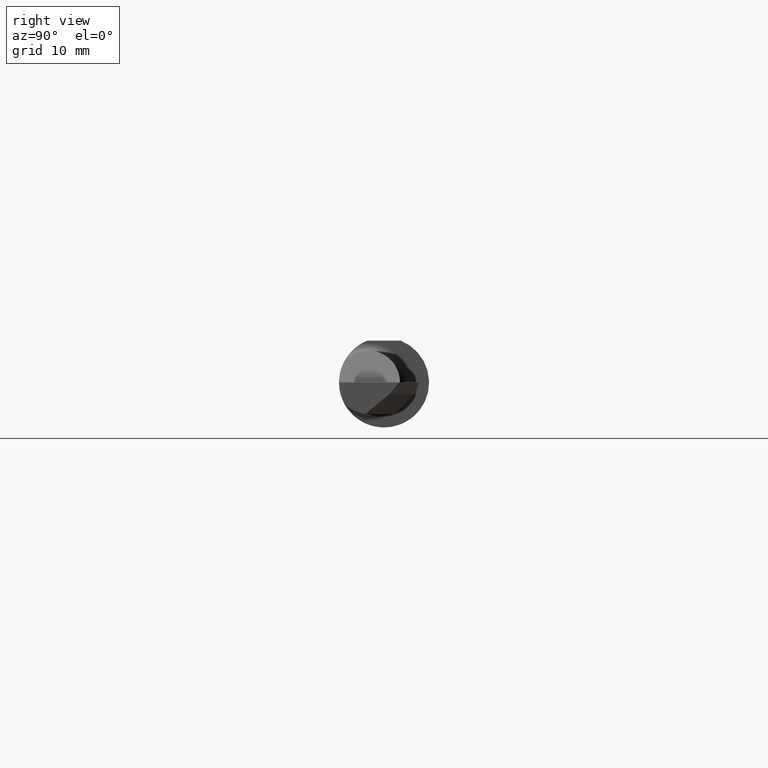
[diagram: clean part render]
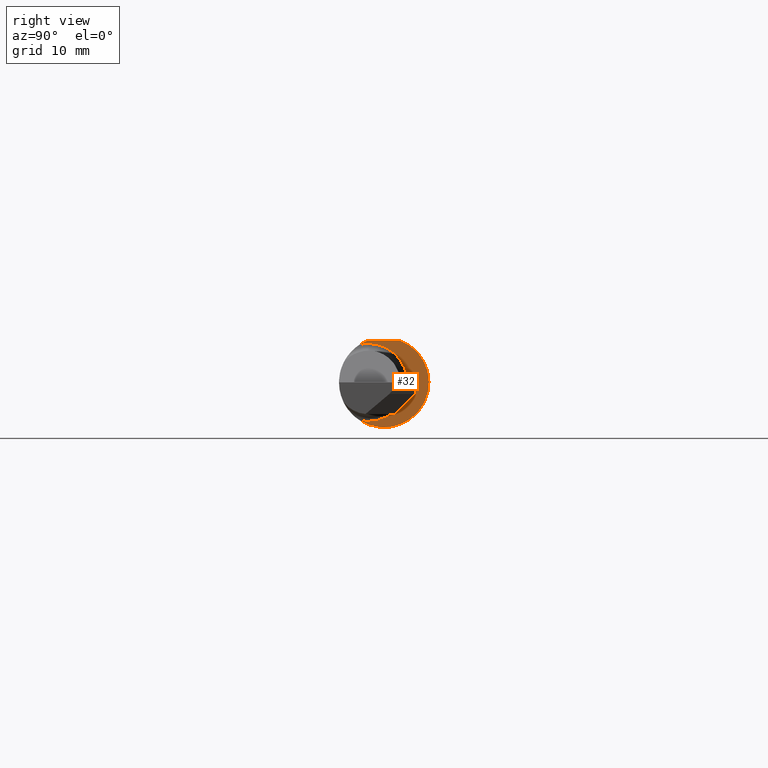
[diagram: same view with one face highlighted and labeled with its STEP entity id]
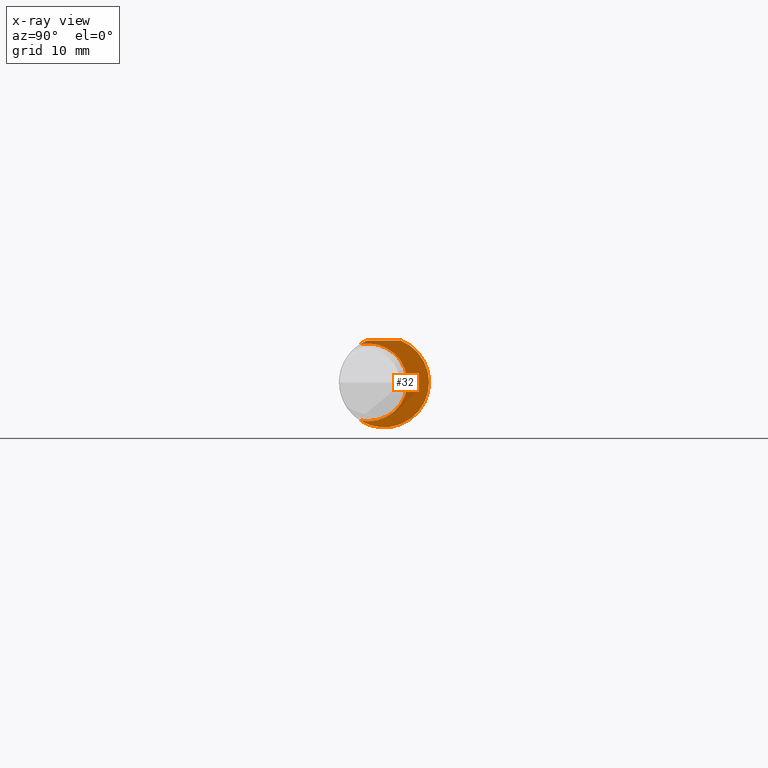
[diagram: x-ray of the same camera — body ghosted, the highlighted face saturated]
A machine part, right view. The second image highlights one B-rep face of the part: STEP entity #32.
The next image is the same camera in x-ray: the body ghosted, the highlighted face saturated — about 11% of this face is hidden behind the body in this view.
In plain terms, the highlighted planar face has unit normal (1, 0, 0).
Its self-contained STEP definition (entity closure, byte-faithful):
#13 = ORIENTED_EDGE ( 'NONE', *, *, #472, .T. ) ;
#28 = CARTESIAN_POINT ( 'NONE',  ( 1.175000000000000266, 0.000000000000000000, 0.000000000000000000 ) ) ;
#32 = ADVANCED_FACE ( 'NONE', ( #814 ), #119, .T. ) ;
#37 = AXIS2_PLACEMENT_3D ( 'NONE', #179, #742, #184 ) ;
#42 = AXIS2_PLACEMENT_3D ( 'NONE', #678, #331, #609 ) ;
#61 = CARTESIAN_POINT ( 'NONE',  ( 1.175000000000000266, 0.000000000000000000, 0.000000000000000000 ) ) ;
#69 = EDGE_CURVE ( 'NONE', #89, #659, #378, .T. ) ;
#84 = AXIS2_PLACEMENT_3D ( 'NONE', #704, #149, #769 ) ;
#86 = CIRCLE ( 'NONE', #653, 0.1560999999999999888 ) ;
#89 = VERTEX_POINT ( 'NONE', #137 ) ;
#119 = PLANE ( 'NONE',  #238 ) ;
#132 = LINE ( 'NONE', #544, #335 ) ;
#137 = CARTESIAN_POINT ( 'NONE',  ( 1.175000000000000266, -0.08381719038816995426, 0.1316886046529207599 ) ) ;
#149 = DIRECTION ( 'NONE',  ( -1.000000000000000000, -0.000000000000000000, -0.000000000000000000 ) ) ;
#170 = CARTESIAN_POINT ( 'NONE',  ( 1.175000000000000266, -0.05409999999999997450, 0.1350000000000000089 ) ) ;
#179 = CARTESIAN_POINT ( 'NONE',  ( 1.175000000000000266, -0.05409999999999999531, 0.000000000000000000 ) ) ;
#184 = DIRECTION ( 'NONE',  ( 0.000000000000000000, 0.000000000000000000, -1.000000000000000000 ) ) ;
#186 = DIRECTION ( 'NONE',  ( 0.000000000000000000, 0.000000000000000000, -1.000000000000000000 ) ) ;
#196 = CIRCLE ( 'NONE', #42, 0.1350000000000000089 ) ;
#237 = CARTESIAN_POINT ( 'NONE',  ( 1.175000000000000266, 0.05756040305626777126, 0.1450999999999999790 ) ) ;
#238 = AXIS2_PLACEMENT_3D ( 'NONE', #349, #690, #186 ) ;
#257 = CARTESIAN_POINT ( 'NONE',  ( 1.175000000000000266, -0.05756040305626777820, 0.1450999999999999790 ) ) ;
#269 = ORIENTED_EDGE ( 'NONE', *, *, #451, .T. ) ;
#281 = EDGE_CURVE ( 'NONE', #385, #319, #86, .T. ) ;
#289 = AXIS2_PLACEMENT_3D ( 'NONE', #61, #355, #907 ) ;
#319 = VERTEX_POINT ( 'NONE', #237 ) ;
#331 = DIRECTION ( 'NONE',  ( -1.000000000000000000, -0.000000000000000000, -0.000000000000000000 ) ) ;
#335 = VECTOR ( 'NONE', #414, 39.37007874015748143 ) ;
#349 = CARTESIAN_POINT ( 'NONE',  ( 1.175000000000000266, 0.2559000000000000163, 0.000000000000000000 ) ) ;
#355 = DIRECTION ( 'NONE',  ( 1.000000000000000000, 0.000000000000000000, 0.000000000000000000 ) ) ;
#376 = ORIENTED_EDGE ( 'NONE', *, *, #69, .T. ) ;
#378 = CIRCLE ( 'NONE', #84, 0.1350000000000000089 ) ;
#385 = VERTEX_POINT ( 'NONE', #495 ) ;
#414 = DIRECTION ( 'NONE',  ( 0.000000000000000000, -1.000000000000000000, 0.000000000000000000 ) ) ;
#451 = EDGE_CURVE ( 'NONE', #319, #868, #132, .T. ) ;
#472 = EDGE_CURVE ( 'NONE', #659, #797, #196, .T. ) ;
#478 = DIRECTION ( 'NONE',  ( 1.000000000000000000, 0.000000000000000000, 0.000000000000000000 ) ) ;
#480 = CARTESIAN_POINT ( 'NONE',  ( 1.175000000000000266, -0.05409999999999999531, -0.1350000000000000089 ) ) ;
#495 = CARTESIAN_POINT ( 'NONE',  ( 1.175000000000000266, -0.08381719038816995426, -0.1316886046529207599 ) ) ;
#533 = DIRECTION ( 'NONE',  ( 0.000000000000000000, 0.000000000000000000, -1.000000000000000000 ) ) ;
#534 = ORIENTED_EDGE ( 'NONE', *, *, #587, .T. ) ;
#544 = CARTESIAN_POINT ( 'NONE',  ( 1.175000000000000266, 0.1000000000000000056, 0.1450999999999999790 ) ) ;
#545 = ORIENTED_EDGE ( 'NONE', *, *, #865, .T. ) ;
#587 = EDGE_CURVE ( 'NONE', #868, #89, #721, .T. ) ;
#609 = DIRECTION ( 'NONE',  ( 0.000000000000000000, 0.000000000000000000, -1.000000000000000000 ) ) ;
#653 = AXIS2_PLACEMENT_3D ( 'NONE', #28, #478, #533 ) ;
#659 = VERTEX_POINT ( 'NONE', #170 ) ;
#678 = CARTESIAN_POINT ( 'NONE',  ( 1.175000000000000266, -0.05409999999999999531, 0.000000000000000000 ) ) ;
#690 = DIRECTION ( 'NONE',  ( 1.000000000000000000, 0.000000000000000000, 0.000000000000000000 ) ) ;
#701 = ORIENTED_EDGE ( 'NONE', *, *, #281, .T. ) ;
#704 = CARTESIAN_POINT ( 'NONE',  ( 1.175000000000000266, -0.05409999999999999531, 0.000000000000000000 ) ) ;
#721 = CIRCLE ( 'NONE', #289, 0.1560999999999999888 ) ;
#734 = EDGE_LOOP ( 'NONE', ( #534, #376, #13, #545, #701, #269 ) ) ;
#742 = DIRECTION ( 'NONE',  ( -1.000000000000000000, -0.000000000000000000, -0.000000000000000000 ) ) ;
#769 = DIRECTION ( 'NONE',  ( 0.000000000000000000, 0.000000000000000000, -1.000000000000000000 ) ) ;
#797 = VERTEX_POINT ( 'NONE', #480 ) ;
#814 = FACE_OUTER_BOUND ( 'NONE', #734, .T. ) ;
#865 = EDGE_CURVE ( 'NONE', #797, #385, #894, .T. ) ;
#868 = VERTEX_POINT ( 'NONE', #257 ) ;
#894 = CIRCLE ( 'NONE', #37, 0.1350000000000000089 ) ;
#907 = DIRECTION ( 'NONE',  ( 0.000000000000000000, 0.000000000000000000, -1.000000000000000000 ) ) ;